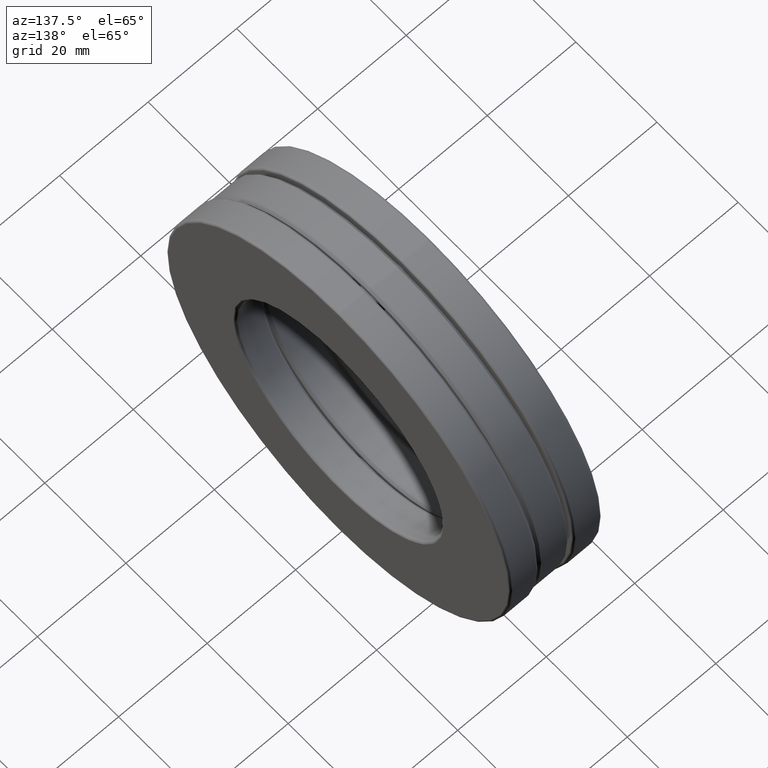
[diagram: clean part render]
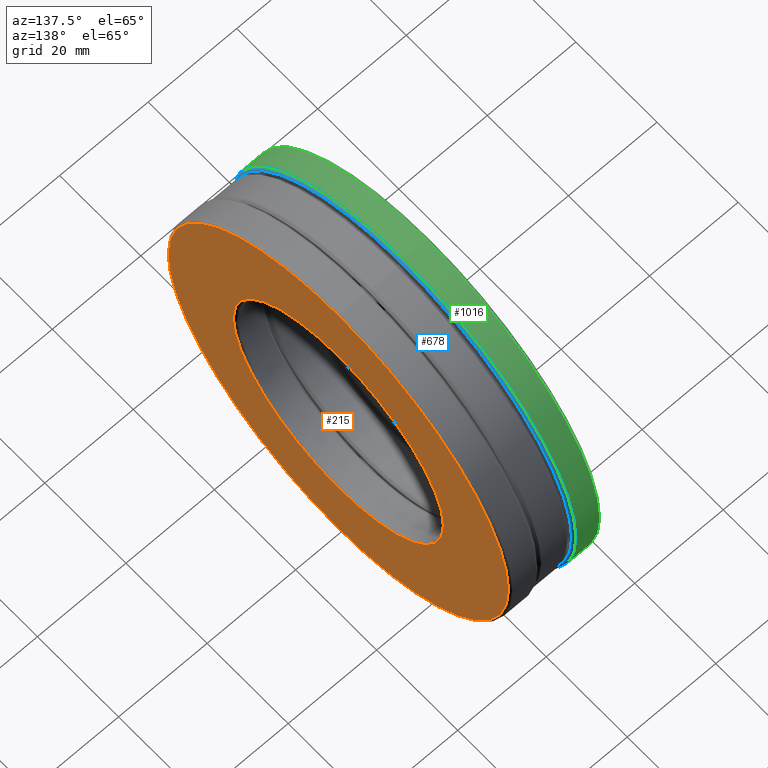
[diagram: same view with three faces highlighted in distinct colors, each labeled with its STEP entity id]
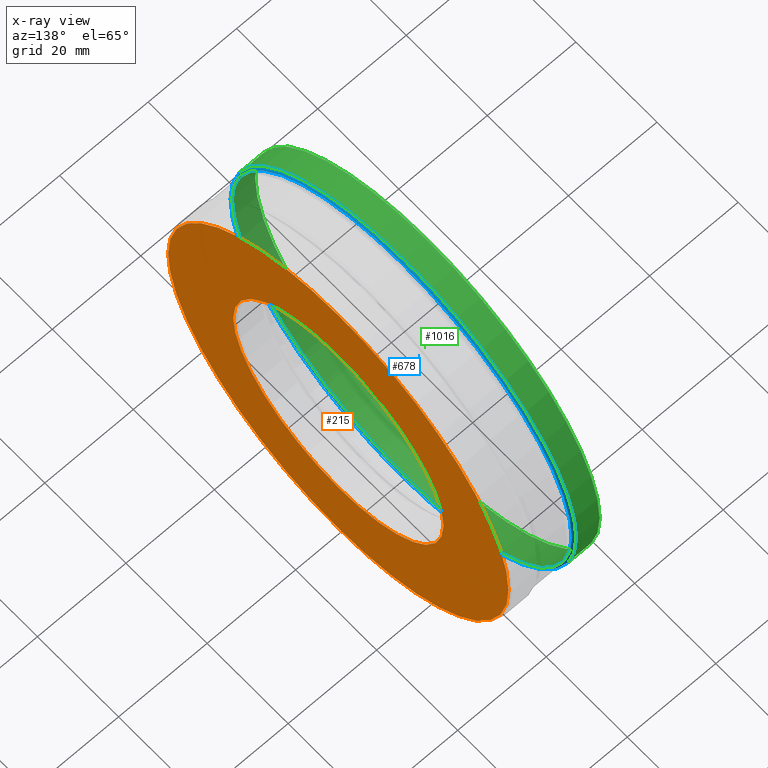
[diagram: x-ray of the same camera — body ghosted, the three highlighted faces saturated]
A machine part, auxiliary view with three faces highlighted in distinct colors.
The next image is the same camera in x-ray (body ghosted, the three faces saturated) — at least one of them is partly hidden behind the body in this view.
Their STEP definitions:

[orange] entity #215 — the highlighted planar face has unit normal (1, 0, 0).
#8 = EDGE_CURVE ( 'NONE', #1211, #1211, #1009, .T. ) ;
#53 = DIRECTION ( 'NONE',  ( -1.000000000000000000, -0.0000000000000000000, -0.0000000000000000000 ) ) ;
#215 = ADVANCED_FACE ( 'NONE', ( #371, #1424 ), #1195, .T. ) ;
#273 = ORIENTED_EDGE ( 'NONE', *, *, #621, .F. ) ;
#371 = FACE_BOUND ( 'NONE', #866, .T. ) ;
#420 = CARTESIAN_POINT ( 'NONE',  ( 0.4060000000000001400, 0.0000000000000000000, 0.0000000000000000000 ) ) ;
#494 = AXIS2_PLACEMENT_3D ( 'NONE', #745, #868, #1200 ) ;
#565 = VERTEX_POINT ( 'NONE', #1317 ) ;
#611 = DIRECTION ( 'NONE',  ( -1.000000000000000000, -0.0000000000000000000, -0.0000000000000000000 ) ) ;
#621 = EDGE_CURVE ( 'NONE', #565, #565, #1147, .T. ) ;
#745 = CARTESIAN_POINT ( 'NONE',  ( 0.4060000000000001400, 0.0000000000000000000, 0.0000000000000000000 ) ) ;
#838 = AXIS2_PLACEMENT_3D ( 'NONE', #940, #611, #1303 ) ;
#866 = EDGE_LOOP ( 'NONE', ( #1271 ) ) ;
#868 = DIRECTION ( 'NONE',  ( 1.000000000000000000, 0.0000000000000000000, 0.0000000000000000000 ) ) ;
#940 = CARTESIAN_POINT ( 'NONE',  ( 0.4060000000000001400, 0.0000000000000000000, 0.0000000000000000000 ) ) ;
#969 = CARTESIAN_POINT ( 'NONE',  ( 0.4060000000000001400, 0.0000000000000000000, 1.020000000000000000 ) ) ;
#984 = EDGE_LOOP ( 'NONE', ( #273 ) ) ;
#1009 = CIRCLE ( 'NONE', #838, 1.020000000000000000 ) ;
#1147 = CIRCLE ( 'NONE', #1362, 1.651875000000000400 ) ;
#1169 = DIRECTION ( 'NONE',  ( 0.0000000000000000000, 0.0000000000000000000, 1.000000000000000000 ) ) ;
#1195 = PLANE ( 'NONE',  #494 ) ;
#1200 = DIRECTION ( 'NONE',  ( 0.0000000000000000000, 0.0000000000000000000, -1.000000000000000000 ) ) ;
#1211 = VERTEX_POINT ( 'NONE', #969 ) ;
#1271 = ORIENTED_EDGE ( 'NONE', *, *, #8, .T. ) ;
#1303 = DIRECTION ( 'NONE',  ( 0.0000000000000000000, 0.0000000000000000000, 1.000000000000000000 ) ) ;
#1317 = CARTESIAN_POINT ( 'NONE',  ( 0.4060000000000001400, 0.0000000000000000000, 1.651875000000000400 ) ) ;
#1362 = AXIS2_PLACEMENT_3D ( 'NONE', #420, #53, #1169 ) ;
#1424 = FACE_OUTER_BOUND ( 'NONE', #984, .T. ) ;

[blue] entity #678 — the highlighted toroidal blend (fillet) surface has major radius 41.9576 mm and minor (blend) radius 0.508 mm.
#1 = ORIENTED_EDGE ( 'NONE', *, *, #1130, .T. ) ;
#3 = AXIS2_PLACEMENT_3D ( 'NONE', #1105, #874, #216 ) ;
#96 = CARTESIAN_POINT ( 'NONE',  ( -0.1559999999999999400, 0.0000000000000000000, 1.651875000000000400 ) ) ;
#141 = CIRCLE ( 'NONE', #3, 1.671875000000000000 ) ;
#179 = DIRECTION ( 'NONE',  ( -1.000000000000000000, -0.0000000000000000000, -0.0000000000000000000 ) ) ;
#216 = DIRECTION ( 'NONE',  ( 0.0000000000000000000, 0.0000000000000000000, 1.000000000000000000 ) ) ;
#356 = EDGE_LOOP ( 'NONE', ( #384 ) ) ;
#384 = ORIENTED_EDGE ( 'NONE', *, *, #1206, .F. ) ;
#434 = CIRCLE ( 'NONE', #571, 1.651875000000000400 ) ;
#571 = AXIS2_PLACEMENT_3D ( 'NONE', #869, #1455, #1098 ) ;
#620 = CARTESIAN_POINT ( 'NONE',  ( -0.1759999999999994900, 0.0000000000000000000, 0.0000000000000000000 ) ) ;
#678 = ADVANCED_FACE ( 'NONE', ( #1268, #1135 ), #1173, .T. ) ;
#682 = EDGE_LOOP ( 'NONE', ( #1 ) ) ;
#706 = AXIS2_PLACEMENT_3D ( 'NONE', #620, #179, #1427 ) ;
#869 = CARTESIAN_POINT ( 'NONE',  ( -0.1559999999999999400, 0.0000000000000000000, 0.0000000000000000000 ) ) ;
#874 = DIRECTION ( 'NONE',  ( -1.000000000000000000, -0.0000000000000000000, -0.0000000000000000000 ) ) ;
#1029 = CARTESIAN_POINT ( 'NONE',  ( -0.1759999999999994900, 0.0000000000000000000, 1.671875000000000000 ) ) ;
#1098 = DIRECTION ( 'NONE',  ( 0.0000000000000000000, 0.0000000000000000000, 1.000000000000000000 ) ) ;
#1105 = CARTESIAN_POINT ( 'NONE',  ( -0.1759999999999994900, 0.0000000000000000000, 0.0000000000000000000 ) ) ;
#1130 = EDGE_CURVE ( 'NONE', #1370, #1370, #434, .T. ) ;
#1135 = FACE_OUTER_BOUND ( 'NONE', #682, .T. ) ;
#1173 = TOROIDAL_SURFACE ( 'NONE', #706, 1.651875000000000400, 0.01999999999999953200 ) ;
#1206 = EDGE_CURVE ( 'NONE', #1208, #1208, #141, .T. ) ;
#1208 = VERTEX_POINT ( 'NONE', #1029 ) ;
#1268 = FACE_OUTER_BOUND ( 'NONE', #356, .T. ) ;
#1370 = VERTEX_POINT ( 'NONE', #96 ) ;
#1427 = DIRECTION ( 'NONE',  ( 0.0000000000000000000, 0.0000000000000000000, 1.000000000000000000 ) ) ;
#1455 = DIRECTION ( 'NONE',  ( -1.000000000000000000, -0.0000000000000000000, -0.0000000000000000000 ) ) ;

[green] entity #1016 — the highlighted cylindrical surface (bore or boss wall) has radius 42.4656 mm, axis along (-1, -0, -0).
#3 = AXIS2_PLACEMENT_3D ( 'NONE', #1105, #874, #216 ) ;
#65 = CARTESIAN_POINT ( 'NONE',  ( -0.3860000000000002900, 0.0000000000000000000, 1.671875000000000000 ) ) ;
#141 = CIRCLE ( 'NONE', #3, 1.671875000000000000 ) ;
#172 = EDGE_CURVE ( 'NONE', #910, #910, #676, .T. ) ;
#191 = DIRECTION ( 'NONE',  ( 0.0000000000000000000, 0.0000000000000000000, 1.000000000000000000 ) ) ;
#216 = DIRECTION ( 'NONE',  ( 0.0000000000000000000, 0.0000000000000000000, 1.000000000000000000 ) ) ;
#291 = EDGE_LOOP ( 'NONE', ( #1254 ) ) ;
#312 = DIRECTION ( 'NONE',  ( -1.000000000000000000, -0.0000000000000000000, -0.0000000000000000000 ) ) ;
#368 = FACE_OUTER_BOUND ( 'NONE', #426, .T. ) ;
#386 = DIRECTION ( 'NONE',  ( 0.0000000000000000000, 0.0000000000000000000, 1.000000000000000000 ) ) ;
#426 = EDGE_LOOP ( 'NONE', ( #1191 ) ) ;
#464 = AXIS2_PLACEMENT_3D ( 'NONE', #972, #312, #191 ) ;
#676 = CIRCLE ( 'NONE', #464, 1.671875000000000000 ) ;
#714 = DIRECTION ( 'NONE',  ( -1.000000000000000000, -0.0000000000000000000, -0.0000000000000000000 ) ) ;
#874 = DIRECTION ( 'NONE',  ( -1.000000000000000000, -0.0000000000000000000, -0.0000000000000000000 ) ) ;
#877 = CYLINDRICAL_SURFACE ( 'NONE', #1411, 1.671875000000000000 ) ;
#910 = VERTEX_POINT ( 'NONE', #65 ) ;
#972 = CARTESIAN_POINT ( 'NONE',  ( -0.3860000000000002900, 0.0000000000000000000, 0.0000000000000000000 ) ) ;
#1016 = ADVANCED_FACE ( 'NONE', ( #1307, #368 ), #877, .T. ) ;
#1029 = CARTESIAN_POINT ( 'NONE',  ( -0.1759999999999994900, 0.0000000000000000000, 1.671875000000000000 ) ) ;
#1105 = CARTESIAN_POINT ( 'NONE',  ( -0.1759999999999994900, 0.0000000000000000000, 0.0000000000000000000 ) ) ;
#1191 = ORIENTED_EDGE ( 'NONE', *, *, #1206, .T. ) ;
#1206 = EDGE_CURVE ( 'NONE', #1208, #1208, #141, .T. ) ;
#1208 = VERTEX_POINT ( 'NONE', #1029 ) ;
#1254 = ORIENTED_EDGE ( 'NONE', *, *, #172, .F. ) ;
#1285 = CARTESIAN_POINT ( 'NONE',  ( 0.0000000000000000000, 0.0000000000000000000, 0.0000000000000000000 ) ) ;
#1307 = FACE_OUTER_BOUND ( 'NONE', #291, .T. ) ;
#1411 = AXIS2_PLACEMENT_3D ( 'NONE', #1285, #714, #386 ) ;